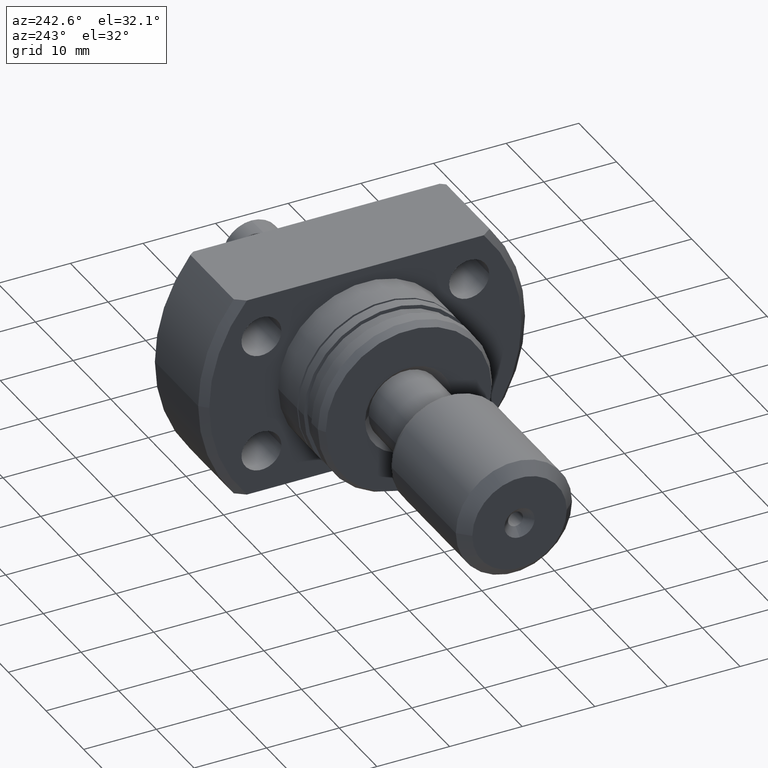
[diagram: clean part render]
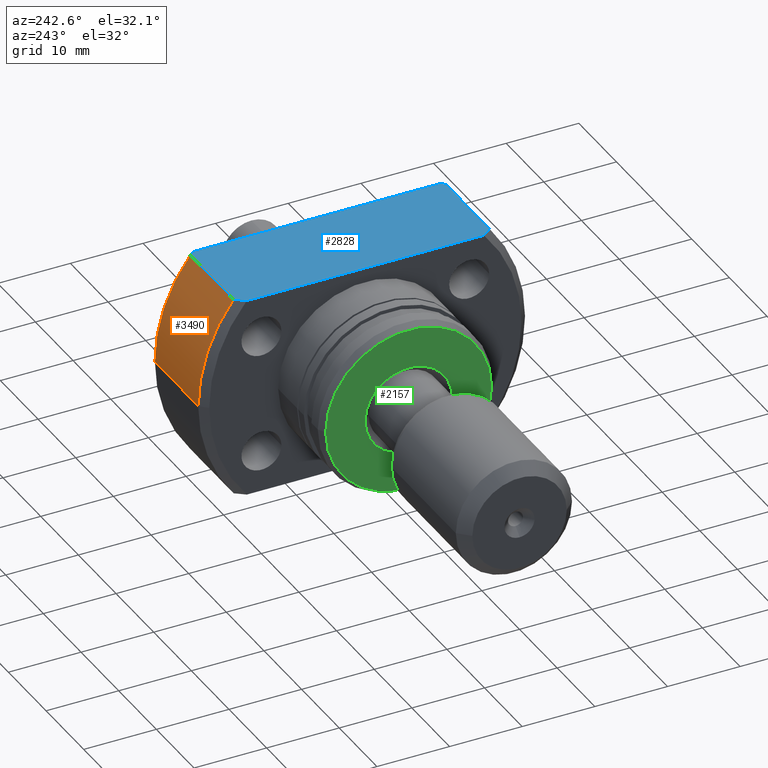
[diagram: same view with three faces highlighted in distinct colors, each labeled with its STEP entity id]
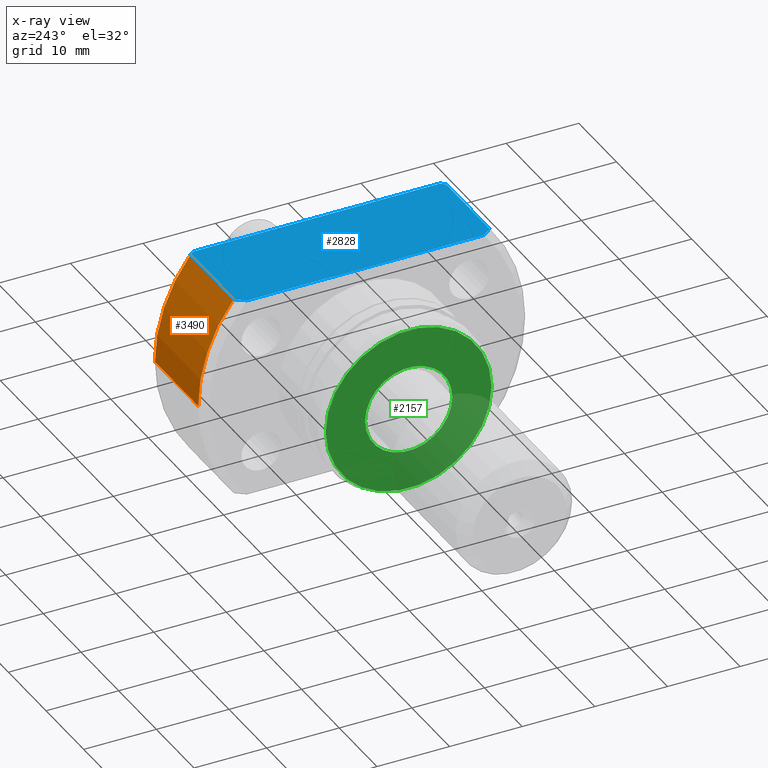
[diagram: x-ray of the same camera — body ghosted, the three highlighted faces saturated]
A machine part, auxiliary view with three faces highlighted in distinct colors.
The next image is the same camera in x-ray (body ghosted, the three faces saturated) — at least one of them is partly hidden behind the body in this view.
Their STEP definitions:

[orange] entity #3490 — the highlighted cylindrical surface (partial cylindrical patch) has radius 22.5 mm, axis along (1, 0, 0).
#7 = CARTESIAN_POINT ( 'NONE',  ( 24.00000000000008882, 1.199654007330677296E-17, 0.000000000000000000 ) ) ;
#242 = VERTEX_POINT ( 'NONE', #2240 ) ;
#250 = EDGE_CURVE ( 'NONE', #2921, #1375, #2101, .T. ) ;
#454 = CARTESIAN_POINT ( 'NONE',  ( -1.422473250300981817E-13, 17.61391495380914307, 13.99999999999999645 ) ) ;
#463 = ORIENTED_EDGE ( 'NONE', *, *, #3658, .F. ) ;
#659 = VECTOR ( 'NONE', #1706, 1000.000000000000000 ) ;
#1148 = CARTESIAN_POINT ( 'NONE',  ( 12.49999999999977263, 6.248197954847141582E-18, 0.000000000000000000 ) ) ;
#1286 = AXIS2_PLACEMENT_3D ( 'NONE', #1148, #3423, #2606 ) ;
#1375 = VERTEX_POINT ( 'NONE', #2281 ) ;
#1516 = EDGE_CURVE ( 'NONE', #1375, #242, #3247, .T. ) ;
#1548 = DIRECTION ( 'NONE',  ( 1.000000000000000000, -2.886466111666351885E-14, -0.000000000000000000 ) ) ;
#1584 = CARTESIAN_POINT ( 'NONE',  ( 12.49999999999977263, 22.49999999999989697, 0.000000000000000000 ) ) ;
#1596 = CYLINDRICAL_SURFACE ( 'NONE', #3436, 22.49999999999990763 ) ;
#1689 = CIRCLE ( 'NONE', #3016, 22.49999999999991473 ) ;
#1706 = DIRECTION ( 'NONE',  ( 1.000000000000000000, 4.998558363877804092E-19, -0.000000000000000000 ) ) ;
#1771 = DIRECTION ( 'NONE',  ( 0.000000000000000000, 1.000000000000000000, 0.000000000000000000 ) ) ;
#1896 = ORIENTED_EDGE ( 'NONE', *, *, #3114, .F. ) ;
#1948 = EDGE_LOOP ( 'NONE', ( #463, #2065, #3628, #1896 ) ) ;
#2025 = CARTESIAN_POINT ( 'NONE',  ( 24.50000000000000355, 1.224646799150062205E-17, 0.000000000000000000 ) ) ;
#2065 = ORIENTED_EDGE ( 'NONE', *, *, #250, .T. ) ;
#2101 = CIRCLE ( 'NONE', #1286, 22.49999999999989697 ) ;
#2240 = CARTESIAN_POINT ( 'NONE',  ( 24.00000000000007461, 17.61391495380845029, 13.99999999999999645 ) ) ;
#2264 = CARTESIAN_POINT ( 'NONE',  ( 24.50000000000000355, 22.49999999999990763, 0.000000000000000000 ) ) ;
#2281 = CARTESIAN_POINT ( 'NONE',  ( 12.49999999999977263, 17.61391495380878425, 13.99999999999999645 ) ) ;
#2606 = DIRECTION ( 'NONE',  ( 0.000000000000000000, 1.000000000000000000, 0.000000000000000000 ) ) ;
#2624 = DIRECTION ( 'NONE',  ( 1.000000000000000000, 4.998558363877804092E-19, -0.000000000000000000 ) ) ;
#2638 = CARTESIAN_POINT ( 'NONE',  ( 24.00000000000008882, 22.49999999999991118, 0.000000000000000000 ) ) ;
#2921 = VERTEX_POINT ( 'NONE', #1584 ) ;
#3016 = AXIS2_PLACEMENT_3D ( 'NONE', #7, #3044, #3650 ) ;
#3018 = FACE_OUTER_BOUND ( 'NONE', #1948, .T. ) ;
#3044 = DIRECTION ( 'NONE',  ( 1.000000000000000000, 4.998558363877804092E-19, -0.000000000000000000 ) ) ;
#3114 = EDGE_CURVE ( 'NONE', #3354, #242, #1689, .T. ) ;
#3247 = LINE ( 'NONE', #454, #3614 ) ;
#3354 = VERTEX_POINT ( 'NONE', #2638 ) ;
#3423 = DIRECTION ( 'NONE',  ( 1.000000000000000000, 4.998558363877804092E-19, -0.000000000000000000 ) ) ;
#3436 = AXIS2_PLACEMENT_3D ( 'NONE', #2025, #2624, #1771 ) ;
#3455 = LINE ( 'NONE', #2264, #659 ) ;
#3490 = ADVANCED_FACE ( 'NONE', ( #3018 ), #1596, .T. ) ;
#3614 = VECTOR ( 'NONE', #1548, 1000.000000000000000 ) ;
#3628 = ORIENTED_EDGE ( 'NONE', *, *, #1516, .T. ) ;
#3650 = DIRECTION ( 'NONE',  ( 0.000000000000000000, 1.000000000000000000, 0.000000000000000000 ) ) ;
#3658 = EDGE_CURVE ( 'NONE', #2921, #3354, #3455, .T. ) ;

[blue] entity #2828 — the highlighted planar face has unit normal (0, 0, 1).
#47 = EDGE_CURVE ( 'NONE', #1375, #2510, #1186, .T. ) ;
#75 = VERTEX_POINT ( 'NONE', #2623 ) ;
#93 = DIRECTION ( 'NONE',  ( 1.000000000000000000, -2.886466111666351885E-14, -0.000000000000000000 ) ) ;
#145 = CARTESIAN_POINT ( 'NONE',  ( 11.49999999999978861, 16.31716887208061095, 14.00000000000000355 ) ) ;
#158 = EDGE_CURVE ( 'NONE', #1298, #1318, #619, .T. ) ;
#219 = ORIENTED_EDGE ( 'NONE', *, *, #3539, .T. ) ;
#242 = VERTEX_POINT ( 'NONE', #2240 ) ;
#335 = EDGE_CURVE ( 'NONE', #75, #2658, #3046, .T. ) ;
#337 = CARTESIAN_POINT ( 'NONE',  ( -1.422473250300981817E-13, 17.61391495380915018, 14.00000000000000355 ) ) ;
#369 = EDGE_LOOP ( 'NONE', ( #1285, #682, #2563, #2599, #1782, #1103, #219, #536 ) ) ;
#454 = CARTESIAN_POINT ( 'NONE',  ( -1.422473250300981817E-13, 17.61391495380914307, 13.99999999999999645 ) ) ;
#536 = ORIENTED_EDGE ( 'NONE', *, *, #1516, .F. ) ;
#619 = B_SPLINE_CURVE_WITH_KNOTS ( 'NONE', 3,
 ( #2846, #2578, #1492, #1988 ),
 .UNSPECIFIED., .F., .F.,
 ( 4, 4 ),
 ( 0.06624998678667230745, 0.06788534956766804906 ),
 .UNSPECIFIED. ) ;
#653 = CARTESIAN_POINT ( 'NONE',  ( 24.50000000000000000, -16.97056274847713553, 14.00000000000000355 ) ) ;
#675 = CARTESIAN_POINT ( 'NONE',  ( 12.16342151182557352, 17.18396987891851424, 14.00000000000000355 ) ) ;
#682 = ORIENTED_EDGE ( 'NONE', *, *, #1840, .T. ) ;
#706 = CARTESIAN_POINT ( 'NONE',  ( 24.00000000000007461, -17.61391495380843963, 14.00000000000001066 ) ) ;
#710 = CARTESIAN_POINT ( 'NONE',  ( 24.50000000000000000, 16.97056274847713553, 14.00000000000000355 ) ) ;
#714 = VECTOR ( 'NONE', #3548, 1000.000000000000000 ) ;
#732 = CARTESIAN_POINT ( 'NONE',  ( 24.16744706737967618, -17.40001821217426681, 14.00000000000000355 ) ) ;
#871 = VECTOR ( 'NONE', #93, 1000.000000000000000 ) ;
#914 = EDGE_CURVE ( 'NONE', #1318, #75, #1815, .T. ) ;
#1103 = ORIENTED_EDGE ( 'NONE', *, *, #3459, .T. ) ;
#1158 = DIRECTION ( 'NONE',  ( 1.000000000000000000, 0.000000000000000000, -0.000000000000000000 ) ) ;
#1186 = B_SPLINE_CURVE_WITH_KNOTS ( 'NONE', 3,
 ( #3494, #675, #3474, #1803 ),
 .UNSPECIFIED., .F., .F.,
 ( 4, 4 ),
 ( 0.02825164645976066535, 0.02989446144990340337 ),
 .UNSPECIFIED. ) ;
#1285 = ORIENTED_EDGE ( 'NONE', *, *, #47, .T. ) ;
#1298 = VERTEX_POINT ( 'NONE', #3413 ) ;
#1318 = VERTEX_POINT ( 'NONE', #2865 ) ;
#1375 = VERTEX_POINT ( 'NONE', #2281 ) ;
#1431 = FACE_OUTER_BOUND ( 'NONE', #369, .T. ) ;
#1492 = CARTESIAN_POINT ( 'NONE',  ( 12.16362554919180994, -17.18423051607681984, 14.00000000000000355 ) ) ;
#1516 = EDGE_CURVE ( 'NONE', #1375, #242, #3247, .T. ) ;
#1521 = VERTEX_POINT ( 'NONE', #710 ) ;
#1528 = VECTOR ( 'NONE', #3451, 1000.000000000000000 ) ;
#1548 = DIRECTION ( 'NONE',  ( 1.000000000000000000, -2.886466111666351885E-14, -0.000000000000000000 ) ) ;
#1641 = AXIS2_PLACEMENT_3D ( 'NONE', #337, #3216, #1158 ) ;
#1722 = CARTESIAN_POINT ( 'NONE',  ( 24.50000000000000000, 16.97056274847713553, 14.00000000000000355 ) ) ;
#1782 = ORIENTED_EDGE ( 'NONE', *, *, #335, .T. ) ;
#1803 = CARTESIAN_POINT ( 'NONE',  ( 11.49999999999978861, 16.31716887208061095, 14.00000000000000355 ) ) ;
#1815 = LINE ( 'NONE', #3485, #871 ) ;
#1840 = EDGE_CURVE ( 'NONE', #2510, #1298, #3106, .T. ) ;
#1988 = CARTESIAN_POINT ( 'NONE',  ( 12.49999999999977263, -17.61391495380810568, 14.00000000000001066 ) ) ;
#2063 = CARTESIAN_POINT ( 'NONE',  ( 24.33413566286970564, -17.18558304397054926, 14.00000000000000355 ) ) ;
#2094 = LINE ( 'NONE', #2393, #714 ) ;
#2195 = CARTESIAN_POINT ( 'NONE',  ( 24.50000000000000000, -16.97056274847713553, 14.00000000000000355 ) ) ;
#2240 = CARTESIAN_POINT ( 'NONE',  ( 24.00000000000007461, 17.61391495380845029, 13.99999999999999645 ) ) ;
#2281 = CARTESIAN_POINT ( 'NONE',  ( 12.49999999999977263, 17.61391495380878425, 13.99999999999999645 ) ) ;
#2283 = CARTESIAN_POINT ( 'NONE',  ( 24.00000000000007461, 17.61391495380845029, 13.99999999999999645 ) ) ;
#2304 = CARTESIAN_POINT ( 'NONE',  ( 11.49999999999978506, -11.99999999999999467, 14.00000000000000355 ) ) ;
#2393 = CARTESIAN_POINT ( 'NONE',  ( 24.50000000000000000, 17.61391495380915018, 14.00000000000000355 ) ) ;
#2510 = VERTEX_POINT ( 'NONE', #145 ) ;
#2563 = ORIENTED_EDGE ( 'NONE', *, *, #158, .T. ) ;
#2578 = CARTESIAN_POINT ( 'NONE',  ( 11.83011165526848885, -16.75213407002135213, 14.00000000000000355 ) ) ;
#2599 = ORIENTED_EDGE ( 'NONE', *, *, #914, .T. ) ;
#2623 = CARTESIAN_POINT ( 'NONE',  ( 24.00000000000007461, -17.61391495380843963, 14.00000000000001066 ) ) ;
#2658 = VERTEX_POINT ( 'NONE', #2195 ) ;
#2828 = ADVANCED_FACE ( 'NONE', ( #1431 ), #2862, .T. ) ;
#2846 = CARTESIAN_POINT ( 'NONE',  ( 11.49999999999978684, -16.31716887208061095, 14.00000000000000355 ) ) ;
#2861 = CARTESIAN_POINT ( 'NONE',  ( 24.33408568434172992, 17.18564783425659925, 14.00000000000000355 ) ) ;
#2862 = PLANE ( 'NONE',  #1641 ) ;
#2865 = CARTESIAN_POINT ( 'NONE',  ( 12.49999999999977263, -17.61391495380810568, 14.00000000000001066 ) ) ;
#2883 = CARTESIAN_POINT ( 'NONE',  ( 24.16739802011472449, 17.40008086510889740, 14.00000000000000355 ) ) ;
#3046 = B_SPLINE_CURVE_WITH_KNOTS ( 'NONE', 3,
 ( #706, #732, #2063, #653 ),
 .UNSPECIFIED., .F., .F.,
 ( 4, 4 ),
 ( 0.02824287035670665011, 0.02906016577245322530 ),
 .UNSPECIFIED. ) ;
#3106 = LINE ( 'NONE', #2304, #1528 ) ;
#3216 = DIRECTION ( 'NONE',  ( 0.000000000000000000, 0.000000000000000000, 1.000000000000000000 ) ) ;
#3247 = LINE ( 'NONE', #454, #3614 ) ;
#3307 = B_SPLINE_CURVE_WITH_KNOTS ( 'NONE', 3,
 ( #1722, #2861, #2883, #2283 ),
 .UNSPECIFIED., .F., .F.,
 ( 4, 4 ),
 ( 0.06706314534022636553, 0.06787700449519981638 ),
 .UNSPECIFIED. ) ;
#3413 = CARTESIAN_POINT ( 'NONE',  ( 11.49999999999978684, -16.31716887208061095, 14.00000000000000355 ) ) ;
#3451 = DIRECTION ( 'NONE',  ( 4.998558363877804092E-19, -1.000000000000000000, 0.000000000000000000 ) ) ;
#3459 = EDGE_CURVE ( 'NONE', #2658, #1521, #2094, .T. ) ;
#3474 = CARTESIAN_POINT ( 'NONE',  ( 11.82989979264795011, 16.75185491336265997, 14.00000000000000355 ) ) ;
#3485 = CARTESIAN_POINT ( 'NONE',  ( -1.162264728904460753E-12, -17.61391495380774685, 14.00000000000001066 ) ) ;
#3494 = CARTESIAN_POINT ( 'NONE',  ( 12.49999999999977263, 17.61391495380878425, 13.99999999999999645 ) ) ;
#3539 = EDGE_CURVE ( 'NONE', #1521, #242, #3307, .T. ) ;
#3548 = DIRECTION ( 'NONE',  ( -0.000000000000000000, 1.000000000000000000, 0.000000000000000000 ) ) ;
#3614 = VECTOR ( 'NONE', #1548, 1000.000000000000000 ) ;

[green] entity #2157 — the highlighted planar face has unit normal (1, 0, 0).
#161 = EDGE_CURVE ( 'NONE', #257, #2995, #930, .T. ) ;
#257 = VERTEX_POINT ( 'NONE', #2558 ) ;
#262 = DIRECTION ( 'NONE',  ( -4.998558363877840685E-19, 1.000000000000000000, 0.000000000000000000 ) ) ;
#367 = CARTESIAN_POINT ( 'NONE',  ( 6.965807324634306143E-16, -1.210536125642780259E-28, 0.000000000000000000 ) ) ;
#527 = EDGE_CURVE ( 'NONE', #2995, #257, #2164, .T. ) ;
#533 = CIRCLE ( 'NONE', #3379, 6.000000000000176748 ) ;
#538 = CIRCLE ( 'NONE', #3086, 6.000000000000176748 ) ;
#574 = AXIS2_PLACEMENT_3D ( 'NONE', #1647, #3589, #3286 ) ;
#815 = CARTESIAN_POINT ( 'NONE',  ( 6.965807324634306143E-16, -1.210536125642780259E-28, 0.000000000000000000 ) ) ;
#930 = CIRCLE ( 'NONE', #3651, 11.42264973081037205 ) ;
#1101 = FACE_OUTER_BOUND ( 'NONE', #3064, .T. ) ;
#1141 = CARTESIAN_POINT ( 'NONE',  ( 6.965807324634306143E-16, -5.999999999999830358, 0.000000000000000000 ) ) ;
#1210 = ORIENTED_EDGE ( 'NONE', *, *, #2268, .T. ) ;
#1290 = VERTEX_POINT ( 'NONE', #1141 ) ;
#1393 = DIRECTION ( 'NONE',  ( 1.000000000000000000, 4.998558363877804092E-19, -0.000000000000000000 ) ) ;
#1585 = AXIS2_PLACEMENT_3D ( 'NONE', #1645, #3037, #2465 ) ;
#1627 = ORIENTED_EDGE ( 'NONE', *, *, #527, .F. ) ;
#1645 = CARTESIAN_POINT ( 'NONE',  ( 6.965807324634245007E-16, 3.481899446371177285E-34, 0.000000000000000000 ) ) ;
#1647 = CARTESIAN_POINT ( 'NONE',  ( 0.000000000000000000, 0.000000000000000000, 0.000000000000000000 ) ) ;
#1656 = DIRECTION ( 'NONE',  ( -4.998558363877840685E-19, 1.000000000000000000, 0.000000000000000000 ) ) ;
#1763 = CARTESIAN_POINT ( 'NONE',  ( 6.965807324634306143E-16, 6.000000000000176748, 7.347880794884335687E-16 ) ) ;
#1774 = CARTESIAN_POINT ( 'NONE',  ( 0.000000000000000000, 0.000000000000000000, 0.000000000000000000 ) ) ;
#1960 = ORIENTED_EDGE ( 'NONE', *, *, #161, .F. ) ;
#2049 = VERTEX_POINT ( 'NONE', #1763 ) ;
#2157 = ADVANCED_FACE ( 'NONE', ( #2495, #1101 ), #2786, .F. ) ;
#2164 = CIRCLE ( 'NONE', #574, 11.42264973081037205 ) ;
#2268 = EDGE_CURVE ( 'NONE', #2049, #1290, #533, .T. ) ;
#2272 = ORIENTED_EDGE ( 'NONE', *, *, #2582, .T. ) ;
#2286 = DIRECTION ( 'NONE',  ( 1.000000000000000000, 4.998558363877804092E-19, -0.000000000000000000 ) ) ;
#2459 = EDGE_LOOP ( 'NONE', ( #2272, #1210 ) ) ;
#2465 = DIRECTION ( 'NONE',  ( -4.998558363877804092E-19, 1.000000000000000000, 0.000000000000000000 ) ) ;
#2495 = FACE_BOUND ( 'NONE', #2459, .T. ) ;
#2558 = CARTESIAN_POINT ( 'NONE',  ( -5.709678134958873413E-18, 11.42264973081037205, 0.000000000000000000 ) ) ;
#2582 = EDGE_CURVE ( 'NONE', #1290, #2049, #538, .T. ) ;
#2786 = PLANE ( 'NONE',  #1585 ) ;
#2968 = CARTESIAN_POINT ( 'NONE',  ( 5.709678134958873413E-18, -11.42264973081037205, 1.434223651019326615E-15 ) ) ;
#2995 = VERTEX_POINT ( 'NONE', #2968 ) ;
#3037 = DIRECTION ( 'NONE',  ( 1.000000000000000000, 4.998558363877804092E-19, -0.000000000000000000 ) ) ;
#3064 = EDGE_LOOP ( 'NONE', ( #1960, #1627 ) ) ;
#3086 = AXIS2_PLACEMENT_3D ( 'NONE', #815, #1393, #262 ) ;
#3102 = DIRECTION ( 'NONE',  ( 1.000000000000000000, 4.998558363877804092E-19, -0.000000000000000000 ) ) ;
#3286 = DIRECTION ( 'NONE',  ( -4.998558363877804092E-19, 1.000000000000000000, 0.000000000000000000 ) ) ;
#3379 = AXIS2_PLACEMENT_3D ( 'NONE', #367, #3102, #1656 ) ;
#3438 = DIRECTION ( 'NONE',  ( -4.998558363877804092E-19, 1.000000000000000000, 0.000000000000000000 ) ) ;
#3589 = DIRECTION ( 'NONE',  ( 1.000000000000000000, 4.998558363877804092E-19, -0.000000000000000000 ) ) ;
#3651 = AXIS2_PLACEMENT_3D ( 'NONE', #1774, #2286, #3438 ) ;